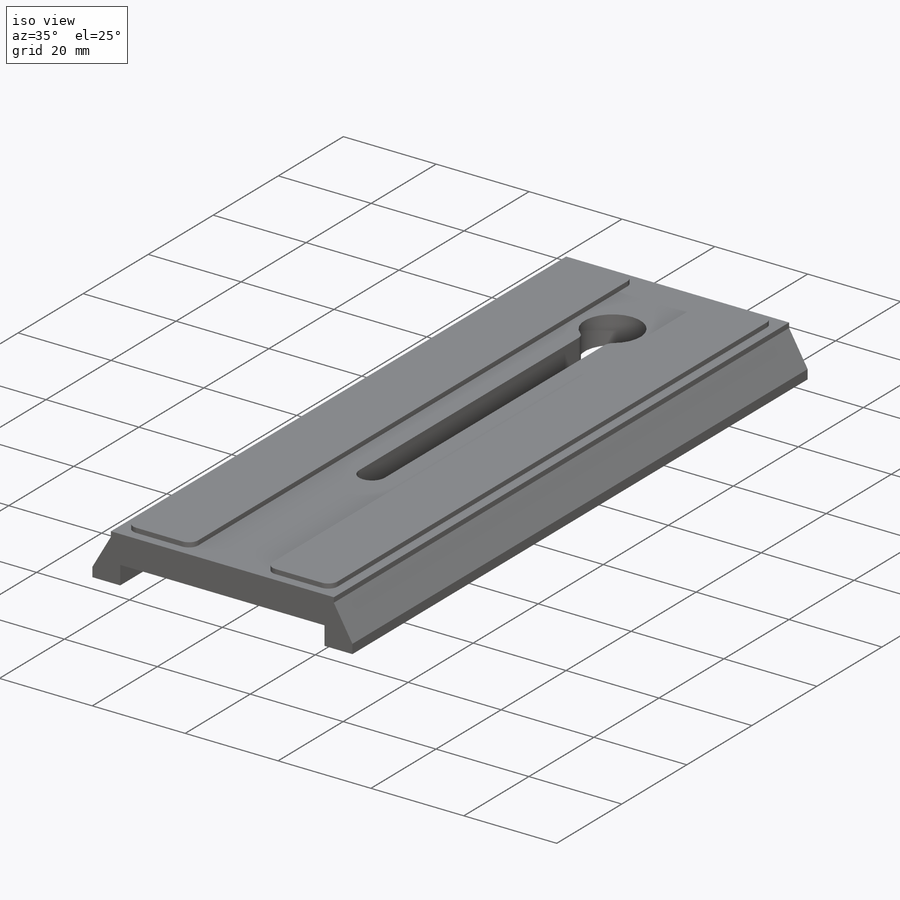
[diagram: iso view]
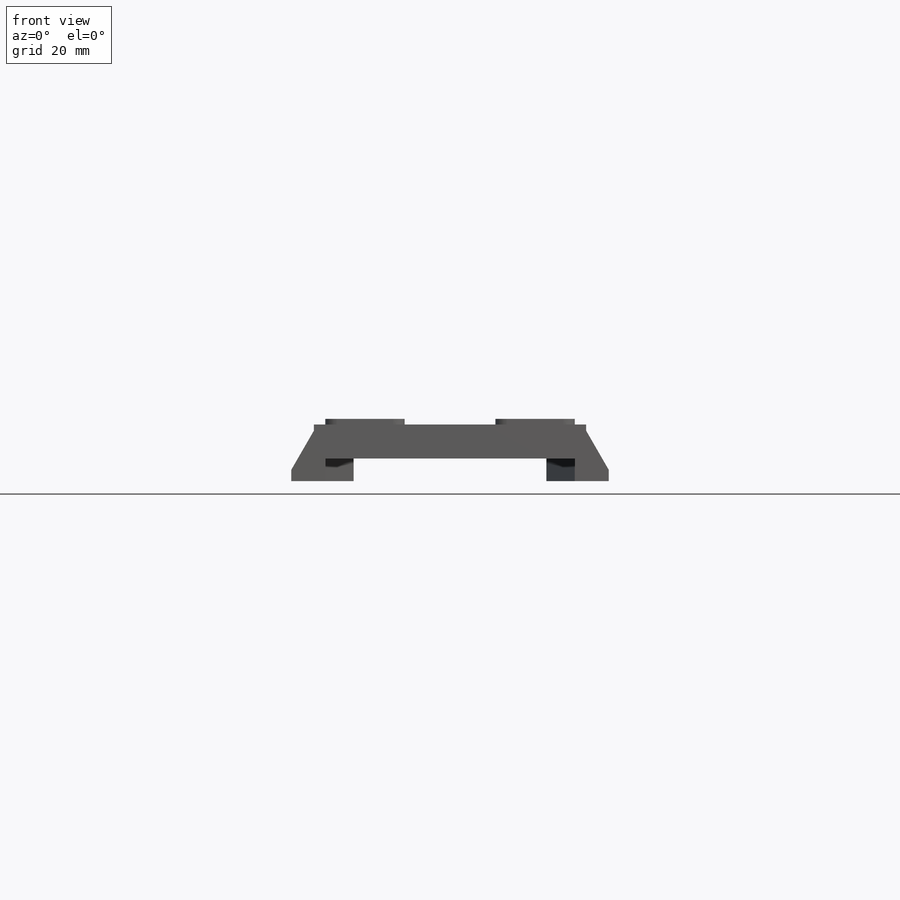
[diagram: front view]
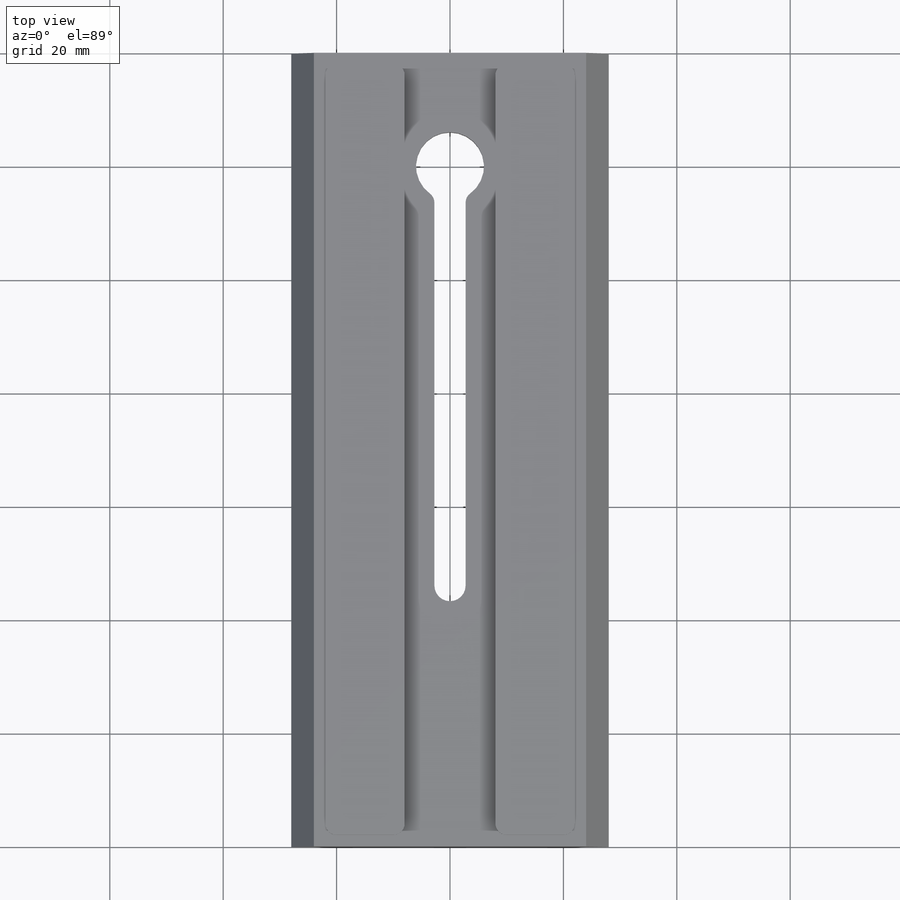
[diagram: top view]
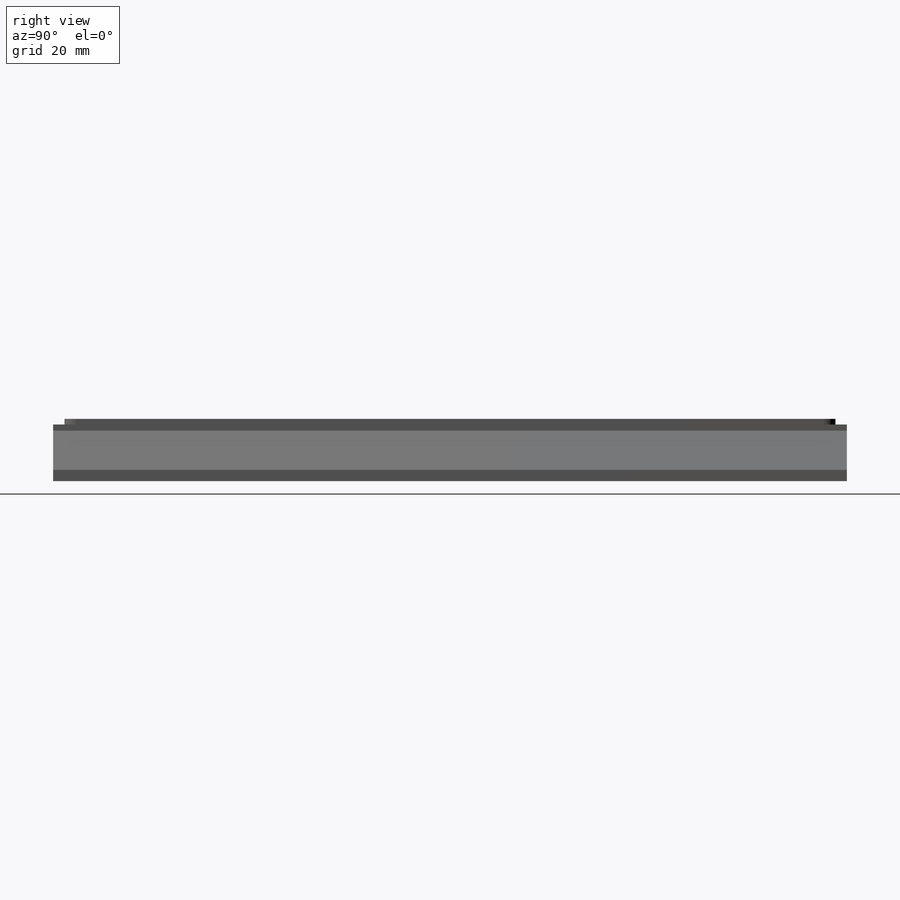
[diagram: right view]
SOLIDWORKS PART (.sldprt)
format: sldprt  version: not decoded by parser v0  size: 334,848 bytes
history: native  units: mm
features: sketch x5, plane x3, cut_extrude x3, extrude x2, material x1, fillet x1 (+8 scaffold rows collapsed)
feature tree (23):
  scaffold x8  (default folders/planes/origin — collapsed)
  material  "Материал <не указан>"
  plane  "Спереди"
  plane  "Сверху"
  plane  "Справа"
  sketch  "Эскиз1"  dims[c1.D1=56.0mm c1.D2=48.0mm c1.D3=2.0mm c1.D4=2.0mm c1.D5=10.0mm c1.D6=7.1992mm c2.D6=60.0deg c2.D7=7.1992mm c3.D7=60.0deg]
  extrude  "Бобышка-Вытянуть1"  Depth=140mm
  sketch  "Эскиз2"  dims[D1=7.0mm D2=11.0mm D3=9.0mm D4=4.0mm D5=28.0mm D6=6.0mm]
  cut_extrude  "Вырез-Вытянуть1"  Depth=4mm
  sketch  "Эскиз3"  dims[D1=2.75mm D2=46.0mm D3=20.0mm]
  cut_extrude  "Вырез-Вытянуть2"  [1 undecoded]
  sketch  "Эскиз4"  dims[D1=12.0mm D2=20.0mm]
  cut_extrude  "Вырез-Вытянуть3"  [1 undecoded]
  sketch  "Эскиз5"  dims[D1=9.0mm D2=2.0mm D3=2.0mm]
  extrude  "Бобышка-Вытянуть2"  Depth=1mm
  fillet  "Скругление1"  Radius=2mm
decode coverage: 9 of 11 modeling features carry decoded parameters
note: 2 parameter values undecoded
note: suppression state not decoded; provenance and decode notes live in map.json
